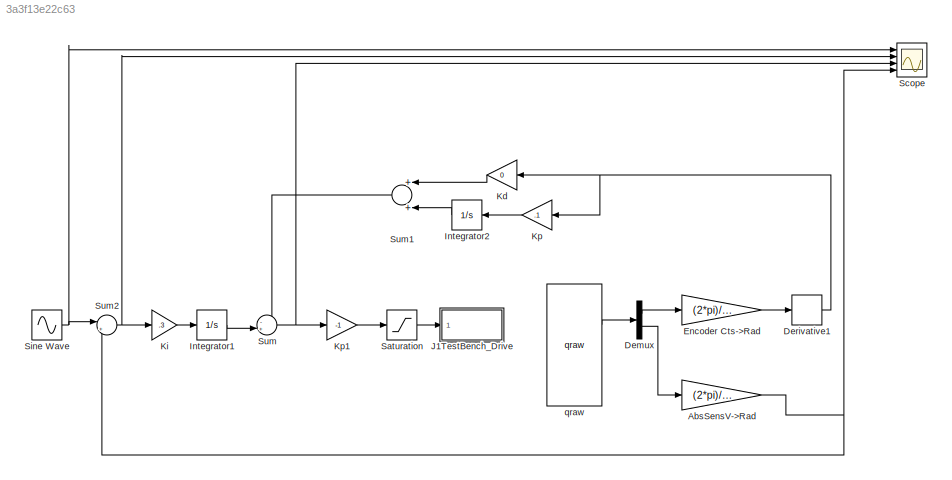
MODEL slx_3a3f13e22c63
KIND model
CONFIG AbsTol = auto
CONFIG EnableMultiTasking = on
CONFIG FixedStep = 0.001
CONFIG MaxStep = auto
CONFIG MinStep = auto
CONFIG RelTol = 1e-3
CONFIG SampleTimeConstraint = Unconstrained
CONFIG Solver = ode5
CONFIG SolverName = ode5
CONFIG StartTime = 0.0
CONFIG StopTime = inf
BLOCK [Gain] AbsSensV->Rad
  Gain = (2*pi)/10
  OutDataTypeStr = Inherit: Inherit via internal rule
  ParamDataTypeStr = Inherit: Inherit via internal rule
  SaturateOnIntegerOverflow = off
BLOCK [Demux] Demux
  DisplayOption = bar
  Outputs = 2
  Ports = [1, 2]
BLOCK [Derivative] Derivative1
BLOCK [Gain] Encoder Cts->Rad
  Gain = (2*pi)/4096
  OutDataTypeStr = Inherit: Inherit via internal rule
  ParamDataTypeStr = Inherit: Inherit via internal rule
  SaturateOnIntegerOverflow = off
BLOCK [Integrator] Integrator1
  LowerSaturationLimit = 0
  Ports = [1, 1]
  UpperSaturationLimit = 2*pi
BLOCK [Integrator] Integrator2
  Ports = [1, 1]
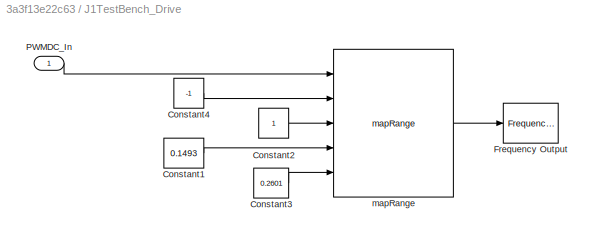
BLOCK [SubSystem] J1TestBench_Drive
  Ports = [1]
  RequestExecContextInheritance = off
  Variant = off
BLOCK [Constant] J1TestBench_Drive/Constant1
  Value = 0.1493
BLOCK [Constant] J1TestBench_Drive/Constant2
BLOCK [Constant] J1TestBench_Drive/Constant3
  Value = 0.2601
BLOCK [Constant] J1TestBench_Drive/Constant4
  Value = -1
BLOCK [Reference] J1TestBench_Drive/Frequency Output  REF=sldrtlib/Frequency Output
  AttributesFormatString = Humusoft\nMF644 [auto]
  Ports = [1]
  SourceBlock = sldrtlib/Frequency Output
  SourceType = Simulink Desktop Real-Time Frequency Output
BLOCK [Inport] J1TestBench_Drive/PWMDC_In
  IconDisplay = Port number
BLOCK [Reference] J1TestBench_Drive/mapRange   REF=dcpctrl/mapRange

  Ports = [5, 1]
  SourceBlock = dcpctrl/mapRange
  SourceType = SubSystem
BLOCK [Gain] Kd
  Gain = 0
  OutDataTypeStr = Inherit: Inherit via internal rule
  ParamDataTypeStr = Inherit: Inherit via internal rule
  SaturateOnIntegerOverflow = off
BLOCK [Gain] Ki
  Gain = .3
  OutDataTypeStr = Inherit: Inherit via internal rule
  ParamDataTypeStr = Inherit: Inherit via internal rule
  SaturateOnIntegerOverflow = off
BLOCK [Gain] Kp
  Gain = .1
  OutDataTypeStr = Inherit: Inherit via internal rule
  ParamDataTypeStr = Inherit: Inherit via internal rule
  SaturateOnIntegerOverflow = off
BLOCK [Gain] Kp1
  Gain = -1
  OutDataTypeStr = Inherit: Inherit via internal rule
  ParamDataTypeStr = Inherit: Inherit via internal rule
  SaturateOnIntegerOverflow = off
BLOCK [Saturate] Saturation
  InputPortMap = u0
  LowerLimit = -1
  Ports = [1, 1]
  UpperLimit = 1
BLOCK [Scope] Scope
  NumInputPorts = 4
  Ports = [4]
  ScopeSpecificationString = Simulink.scopes.TimeScopeBlockCfg('CurrentConfiguration', extmgr.ConfigurationSet(extmgr.Configuration('Core','General UI',true),extmgr.Configuration('Core','Source UI',true),extmgr.Configuration('Sources','WiredSimulink',true),extmgr.Configuration('Visuals','Time Domain',true,'SerializedDisplays',{struct('MinYLimReal','2.90689','MaxYLimReal','5.25395','YLabelReal','','MinYLimMag','2.90689','MaxYL...<+3497ch>
BLOCK [Sin] Sine Wave
  Amplitude = 2
  Bias = pi
  Frequency = .2
  Ports = [0, 1]
  SampleTime = 0
BLOCK [Sum] Sum
  IconShape = round
  InputSameDT = off
  Inputs = -+|
  OutDataTypeStr = Inherit: Inherit via internal rule
  Ports = [2, 1]
  SaturateOnIntegerOverflow = off
BLOCK [Sum] Sum1
  InputSameDT = off
  OutDataTypeStr = Inherit: Inherit via internal rule
  Ports = [2, 1]
  SaturateOnIntegerOverflow = off
BLOCK [Sum] Sum2
  IconShape = round
  InputSameDT = off
  Inputs = |+-
  OutDataTypeStr = Inherit: Inherit via internal rule
  Ports = [2, 1]
  SaturateOnIntegerOverflow = off
BLOCK [Reference] qraw  REF=dcpctrl/qraw
  Ports = [0, 5]
  SourceBlock = dcpctrl/qraw
  SourceType = SubSystem
NET AbsSensV->Rad:1 -> Scope:4, Sum2:2
LINE Demux:1 -> Encoder Cts->Rad:1
LINE Demux:2 -> AbsSensV->Rad:1
NET Derivative1:1 -> Kd:1, Kp:1
LINE Encoder Cts->Rad:1 -> Derivative1:1
LINE Integrator1:1 -> Sum:2
LINE Integrator2:1 -> Sum1:2
LINE J1TestBench_Drive/Constant1:1 -> J1TestBench_Drive/mapRange :4
LINE J1TestBench_Drive/Constant2:1 -> J1TestBench_Drive/mapRange :3
LINE J1TestBench_Drive/Constant3:1 -> J1TestBench_Drive/mapRange :5
LINE J1TestBench_Drive/Constant4:1 -> J1TestBench_Drive/mapRange :2
LINE J1TestBench_Drive/PWMDC_In:1 -> J1TestBench_Drive/mapRange :1
LINE J1TestBench_Drive/mapRange :1 -> J1TestBench_Drive/Frequency Output:1
LINE Kd:1 -> Sum1:1
LINE Ki:1 -> Integrator1:1
LINE Kp1:1 -> Saturation:1
LINE Kp:1 -> Integrator2:1
LINE Saturation:1 -> J1TestBench_Drive:1
NET Sine Wave:1 -> Scope:1, Sum2:1
LINE Sum1:1 -> Sum:1
NET Sum2:1 -> Ki:1, Scope:2
NET Sum:1 -> Kp1:1, Scope:3
LINE qraw:2 -> Demux:1
note: NET lines group one-source signal fan-out (src -> all destinations, sorted); 1:1 wires keep LINE
